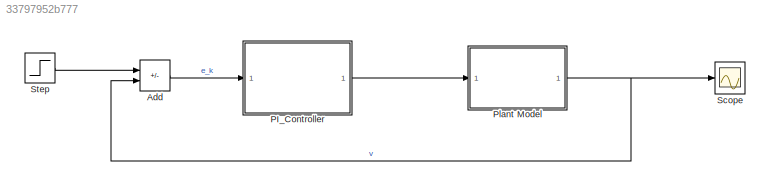
MODEL slx_33797952b777
KIND model
CONFIG AbsTol = auto
CONFIG EnableMultiTasking = off
CONFIG FixedStep = auto
CONFIG MaxStep = auto
CONFIG MinStep = auto
CONFIG RelTol = 1e-3
CONFIG SampleTimeConstraint = Unconstrained
CONFIG SolverName = VariableStepAuto
CONFIG StartTime = 0.0
CONFIG StopTime = 10
BLOCK [Sum] Add
  IconShape = rectangular
  Inputs = +-
  Ports = [2, 1]
BLOCK [ModelReference] PI_Controller
  ModelNameDialog = PI_Controller
  ModelReferenceVersion = 1.7
  Ports = [1, 1]
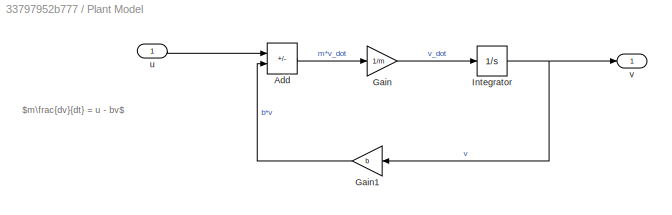
BLOCK [SubSystem] Plant Model
  Ports = [1, 1]
  RequestExecContextInheritance = off
BLOCK [Sum] Plant Model/Add
  IconShape = rectangular
  Inputs = +-
  Ports = [2, 1]
BLOCK [Gain] Plant Model/Gain
  Gain = 1/m
BLOCK [Gain] Plant Model/Gain1
  Gain = b
  NameLocation = top
BLOCK [Integrator] Plant Model/Integrator
  Ports = [1, 1]
BLOCK [Inport] Plant Model/u
BLOCK [Outport] Plant Model/v
BLOCK [Scope] Scope 
  Floating = off
  NumInputPorts = 1
  Ports = [1]
  ScopeSpecificationString = Simulink.scopes.TimeScopeBlockCfg('CurrentConfiguration', extmgr.ConfigurationSet(extmgr.Configuration('Core','General UI',true),extmgr.Configuration('Core','Source UI',true),extmgr.Configuration('Sources','WiredSimulink',true),extmgr.Configuration('Visuals','Time Domain',true,'SerializedDisplays',{struct('MinYLimReal','-1.24722','MaxYLimReal','11.22495','YLabelReal','','MinYLimMag','0.00000','Max...<+1347ch>
BLOCK [Step] Step 
  After = u
  SampleTime = 0
  Time = 0
ANNOTATION Plant Model: $m\frac{dv}{dt} = u - bv$
LINE Add:1 -> PI_Controller:1
LINE PI_Controller:1 -> Plant Model:1
LINE Plant Model/Add:1 -> Plant Model/Gain:1
LINE Plant Model/Gain1:1 -> Plant Model/Add:2
LINE Plant Model/Gain:1 -> Plant Model/Integrator:1
NET Plant Model/Integrator:1 -> Plant Model/Gain1:1, Plant Model/v:1
LINE Plant Model/u:1 -> Plant Model/Add:1
NET Plant Model:1 -> Add:2, Scope :1
LINE Step :1 -> Add:1
note: NET lines group one-source signal fan-out (src -> all destinations, sorted); 1:1 wires keep LINE
